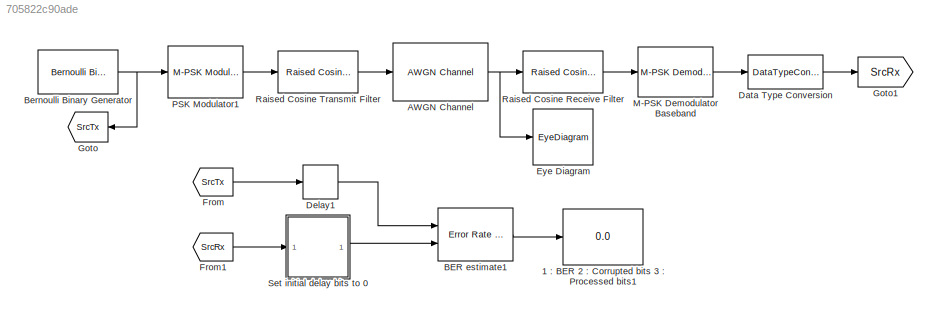
MODEL slx_705822c90ade
KIND model
CONFIG AbsTol = auto
CONFIG EnableMultiTasking = off
CONFIG FixedStep = auto
CONFIG MaxStep = auto
CONFIG MinStep = auto
CONFIG RelTol = 1e-3
CONFIG SampleTimeConstraint = Unconstrained
CONFIG SolverName = VariableStepAuto
CONFIG StartTime = 0.0
CONFIG StopTime = 1
BLOCK [Display] 1 : BER 2 : Corrupted bits 3 : Processed bits1
  Decimation = 1
  Ports = [1]
BLOCK [Reference] AWGN Channel  REF=commchan3/AWGN
Channel
  Ports = [1, 1]
  SourceBlock = commchan3/AWGN\nChannel
  SourceProductBaseCode = CM
  SourceType = AWGN Channel
  UserDataPersistent = on
BLOCK [Reference] BER estimate1  REF=commsink2/Error Rate
Calculation
  Ports = [2, 1]
  SourceBlock = commsink2/Error Rate\nCalculation
  SourceProductBaseCode = CM
  SourceType = Error Rate Calculation
BLOCK [Reference] Bernoulli Binary Generator  REF=commrandsrc3/Bernoulli Binary
Generator
  Ports = [0, 1]
  SourceBlock = commrandsrc3/Bernoulli Binary\nGenerator
  SourceProductBaseCode = CM
  SourceType = Bernoulli Binary Generator
BLOCK [DataTypeConversion] Data Type Conversion
  OutDataTypeStr = uint8
  RndMeth = Floor
  SaturateOnIntegerOverflow = off
BLOCK [Delay] Delay1
  DelayLength = 2*PS_span
  InitialCondition = 0
  InputPortMap = u0
  InputProcessing = Columns as channels (frame based)
  Ports = [1, 1]
BLOCK [EyeDiagram] Eye Diagram
  Ports = [1]
  ScopeSpecificationString = comm.scopes.EyeDiagramBlockCfg('CurrentConfiguration', extmgr.ConfigurationSet(extmgr.Configuration('Core','General UI',true),extmgr.Configuration('Core','Source UI',true),extmgr.Configuration('Sources','WiredSimulink',true),extmgr.Configuration('Sources','Workspace',false),extmgr.Configuration('Sources','Simulink',false),extmgr.Configuration('Sources','File',false),extmgr.Configuration('Sources',...<+2071ch>
BLOCK [From] From
  GotoTag = SrcTx
BLOCK [From] From1
  GotoTag = SrcRx
BLOCK [Goto] Goto
  GotoTag = SrcTx
  NameLocation = top
BLOCK [Goto] Goto1
  GotoTag = SrcRx
BLOCK [Reference] M-PSK Demodulator Baseband  REF=commdigbbndpm3/M-PSK
Demodulator
Baseband
  Ports = [1, 1]
  SourceBlock = commdigbbndpm3/M-PSK\nDemodulator\nBaseband
  SourceProductBaseCode = CM
  SourceType = M-PSK Demodulator Baseband
BLOCK [Reference] PSK Modulator1  REF=commdigbbndpm3/M-PSK
Modulator
Baseband
  Ports = [1, 1]
  SourceBlock = commdigbbndpm3/M-PSK\nModulator\nBaseband
  SourceProductBaseCode = CM
  SourceType = M-PSK Modulator Baseband
BLOCK [Reference] Raised Cosine Receive Filter  REF=commfilt2/Raised Cosine
Receive Filter
  Ports = [1, 1]
  SourceBlock = commfilt2/Raised Cosine\nReceive Filter
  SourceProductBaseCode = CM
  SourceType = Raised Cosine Receive Filter
BLOCK [Reference] Raised Cosine Transmit Filter  REF=commfilt2/Raised Cosine
Transmit Filter
  Ports = [1, 1]
  SourceBlock = commfilt2/Raised Cosine\nTransmit Filter
  SourceProductBaseCode = CM
  SourceType = Raised Cosine Transmit Filter
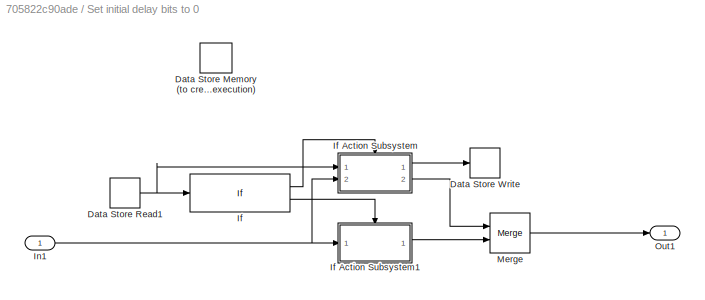
BLOCK [SubSystem] Set initial delay bits to 0
  Ports = [1, 1]
  RequestExecContextInheritance = off
  ShowPortLabels = none
BLOCK [DataStoreMemory] Set initial delay bits to 0/Data Store Memory (to create variable modifiable during execution)
  DataStoreName = INIT
  ReadBeforeWriteMsg = warning
  ShowAdditionalParam = off
  WriteAfterReadMsg = warning
  WriteAfterWriteMsg = warning
BLOCK [DataStoreRead] Set initial delay bits to 0/Data Store Read1
  DataStoreName = INIT
  IndexOptions = Index vector (dialog)
  Indices = 1
  OutputSizes = 1
  Ports = [0, 1]
BLOCK [DataStoreWrite] Set initial delay bits to 0/Data Store Write
  DataStoreName = INIT
  IndexOptions = Index vector (dialog)
  Indices = 1
  OutputSizes = 1
  Ports = [1]
BLOCK [If] Set initial delay bits to 0/If
  IfExpression = u1 == 0
  Ports = [1, 2]
  ZeroCross = off
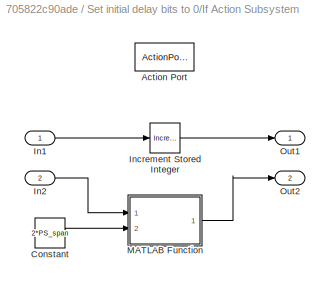
BLOCK [SubSystem] Set initial delay bits to 0/If Action Subsystem
  Ports = [2, 2, 0, 0, 0, 0, 0, 1]
  RequestExecContextInheritance = off
  TreatAsAtomicUnit = on
BLOCK [ActionPort] Set initial delay bits to 0/If Action Subsystem/Action Port
  ActionPortLabel = if(u1 == 0)
BLOCK [Constant] Set initial delay bits to 0/If Action Subsystem/Constant
  Value = 2*PS_span
BLOCK [Inport] Set initial delay bits to 0/If Action Subsystem/In1
BLOCK [Inport] Set initial delay bits to 0/If Action Subsystem/In2
  Port = 2
BLOCK [Reference] Set initial delay bits to 0/If Action Subsystem/Increment Stored Integer  REF=simulink/Additional Math
& Discrete/Additional Math:
Increment - Decrement/Increment
Stored Integer
  Ports = [1, 1]
  SourceBlock = simulink/Additional Math\n& Discrete/Additional Math:\nIncrement - Decrement/Increment\nStored Integer
  SourceProductBaseCode = SL
  SourceType = Stored Integer Value Increment
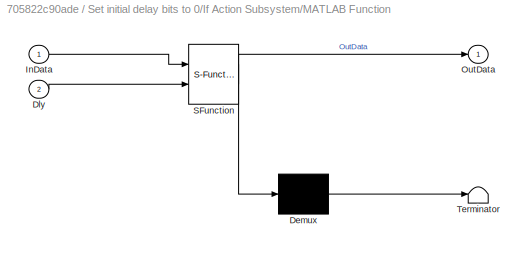
BLOCK [SubSystem] Set initial delay bits to 0/If Action Subsystem/MATLAB Function
  ErrorFcn = Stateflow.Translate.translate
  PermitHierarchicalResolution = ExplicitOnly
  Ports = [2, 1]
  RequestExecContextInheritance = off
  SFBlockType = MATLAB Function
  TreatAsAtomicUnit = on
BLOCK [Demux] Set initial delay bits to 0/If Action Subsystem/MATLAB Function/ Demux 
  Outputs = 1
  Ports = [1, 1]
BLOCK [S-Function] Set initial delay bits to 0/If Action Subsystem/MATLAB Function/ SFunction 
  EnableBusSupport = on
  FunctionName = sf_sfun
  PortCounts = [2 2]
  Ports = [2, 2]
  SFcnIsStateOwnerBlock = off
  SFunctionDeploymentMode = off
  Tag = Stateflow S-Function 2
BLOCK [Terminator] Set initial delay bits to 0/If Action Subsystem/MATLAB Function/ Terminator 
BLOCK [Inport] Set initial delay bits to 0/If Action Subsystem/MATLAB Function/Dly
  Port = 2
BLOCK [Inport] Set initial delay bits to 0/If Action Subsystem/MATLAB Function/InData
BLOCK [Outport] Set initial delay bits to 0/If Action Subsystem/MATLAB Function/OutData
BLOCK [Outport] Set initial delay bits to 0/If Action Subsystem/Out1
BLOCK [Outport] Set initial delay bits to 0/If Action Subsystem/Out2
  Port = 2
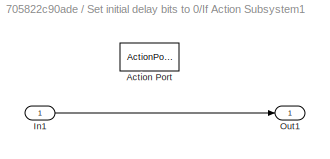
BLOCK [SubSystem] Set initial delay bits to 0/If Action Subsystem1
  Ports = [1, 1, 0, 0, 0, 0, 0, 1]
  RequestExecContextInheritance = off
  TreatAsAtomicUnit = on
BLOCK [ActionPort] Set initial delay bits to 0/If Action Subsystem1/Action Port
  ActionPortLabel = else
BLOCK [Inport] Set initial delay bits to 0/If Action Subsystem1/In1
BLOCK [Outport] Set initial delay bits to 0/If Action Subsystem1/Out1
BLOCK [Inport] Set initial delay bits to 0/In1
BLOCK [Merge] Set initial delay bits to 0/Merge
  Ports = [2, 1]
BLOCK [Outport] Set initial delay bits to 0/Out1
NET AWGN Channel:1 -> Eye Diagram:1, Raised Cosine Receive Filter:1
LINE BER estimate1:1 -> 1 : BER 2 : Corrupted bits 3 : Processed bits1:1
NET Bernoulli Binary Generator:1 -> Goto:1, PSK Modulator1:1
LINE Data Type Conversion:1 -> Goto1:1
LINE Delay1:1 -> BER estimate1:1
LINE From1:1 -> Set initial delay bits to 0:1
LINE From:1 -> Delay1:1
LINE M-PSK Demodulator Baseband:1 -> Data Type Conversion:1
LINE PSK Modulator1:1 -> Raised Cosine Transmit Filter:1
LINE Raised Cosine Receive Filter:1 -> M-PSK Demodulator Baseband:1
LINE Raised Cosine Transmit Filter:1 -> AWGN Channel:1
NET Set initial delay bits to 0/Data Store Read1:1 -> Set initial delay bits to 0/If Action Subsystem:1, Set initial delay bits to 0/If:1
LINE Set initial delay bits to 0/If Action Subsystem/Constant:1 -> Set initial delay bits to 0/If Action Subsystem/MATLAB Function:2
LINE Set initial delay bits to 0/If Action Subsystem/In1:1 -> Set initial delay bits to 0/If Action Subsystem/Increment Stored Integer:1
LINE Set initial delay bits to 0/If Action Subsystem/In2:1 -> Set initial delay bits to 0/If Action Subsystem/MATLAB Function:1
LINE Set initial delay bits to 0/If Action Subsystem/Increment Stored Integer:1 -> Set initial delay bits to 0/If Action Subsystem/Out1:1
LINE Set initial delay bits to 0/If Action Subsystem/MATLAB Function:1 -> Set initial delay bits to 0/If Action Subsystem/Out2:1
LINE Set initial delay bits to 0/If Action Subsystem1/In1:1 -> Set initial delay bits to 0/If Action Subsystem1/Out1:1
LINE Set initial delay bits to 0/If Action Subsystem1:1 -> Set initial delay bits to 0/Merge:2
LINE Set initial delay bits to 0/If Action Subsystem:1 -> Set initial delay bits to 0/Data Store Write:1
LINE Set initial delay bits to 0/If Action Subsystem:2 -> Set initial delay bits to 0/Merge:1
LINE Set initial delay bits to 0/If:1 -> Set initial delay bits to 0/If Action Subsystem:ifaction
LINE Set initial delay bits to 0/If:2 -> Set initial delay bits to 0/If Action Subsystem1:ifaction
NET Set initial delay bits to 0/In1:1 -> Set initial delay bits to 0/If Action Subsystem1:1, Set initial delay bits to 0/If Action Subsystem:2
LINE Set initial delay bits to 0/Merge:1 -> Set initial delay bits to 0/Out1:1
LINE Set initial delay bits to 0:1 -> BER estimate1:2
note: NET lines group one-source signal fan-out (src -> all destinations, sorted); 1:1 wires keep LINE
CHART Set initial delay
bits to 0/If Action
Subsystem/MATLAB Function states=1 transitions=1
  STATE_LABEL 'eML_blk_kernel()'
  STATE_LABEL 'SCRIPT:\n\nfunction OutData = fcn( InData, Dly )\n    OutData = uint8(zeros(length(InData),1));\n    OutData(1+Dly:end) = InData(1+Dly:end);\nend\n\n'
CHART  states=0 transitions=0
